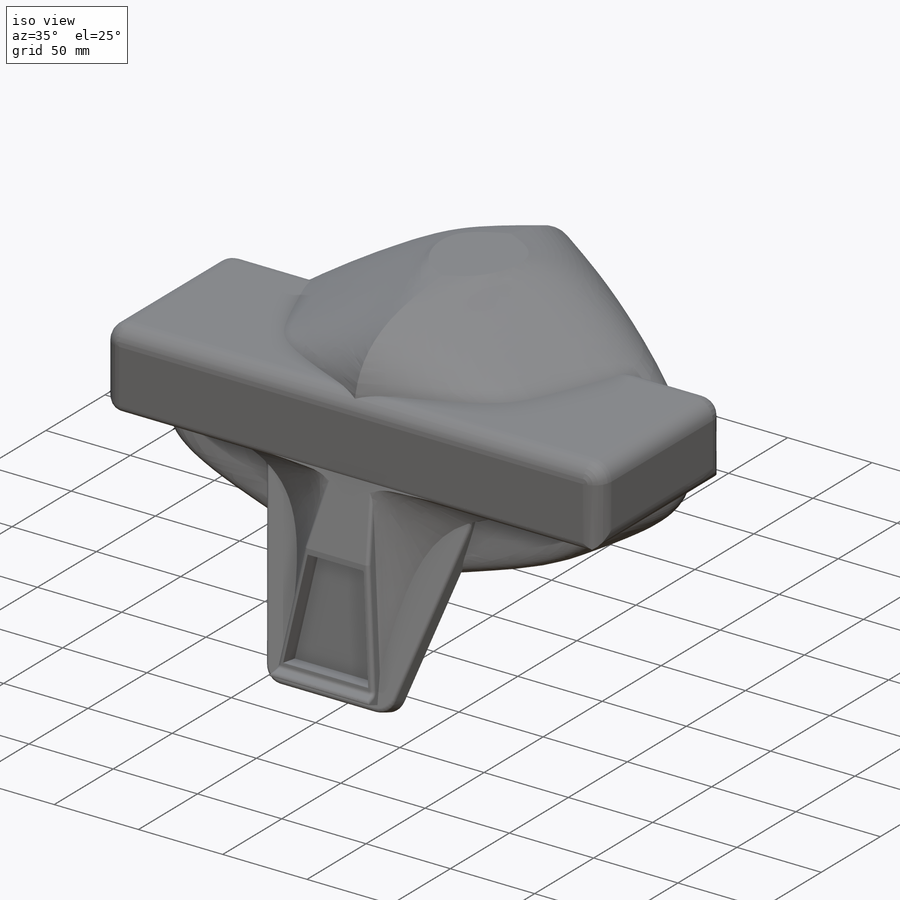
[diagram: iso view]
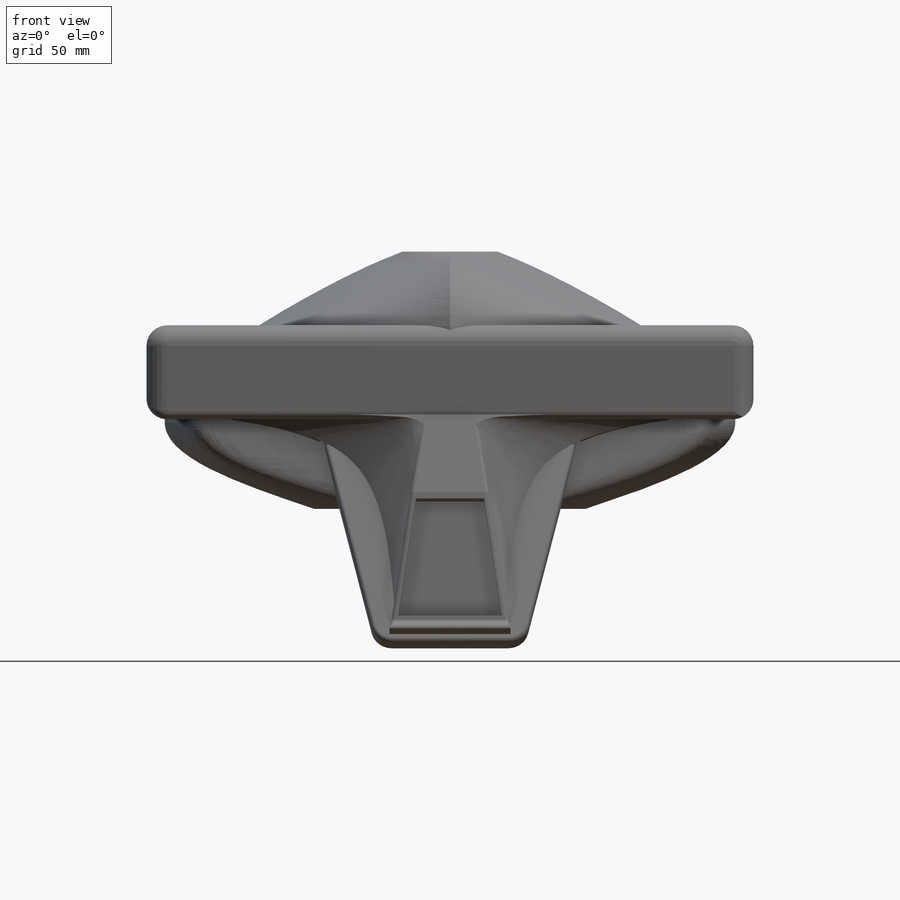
[diagram: front view]
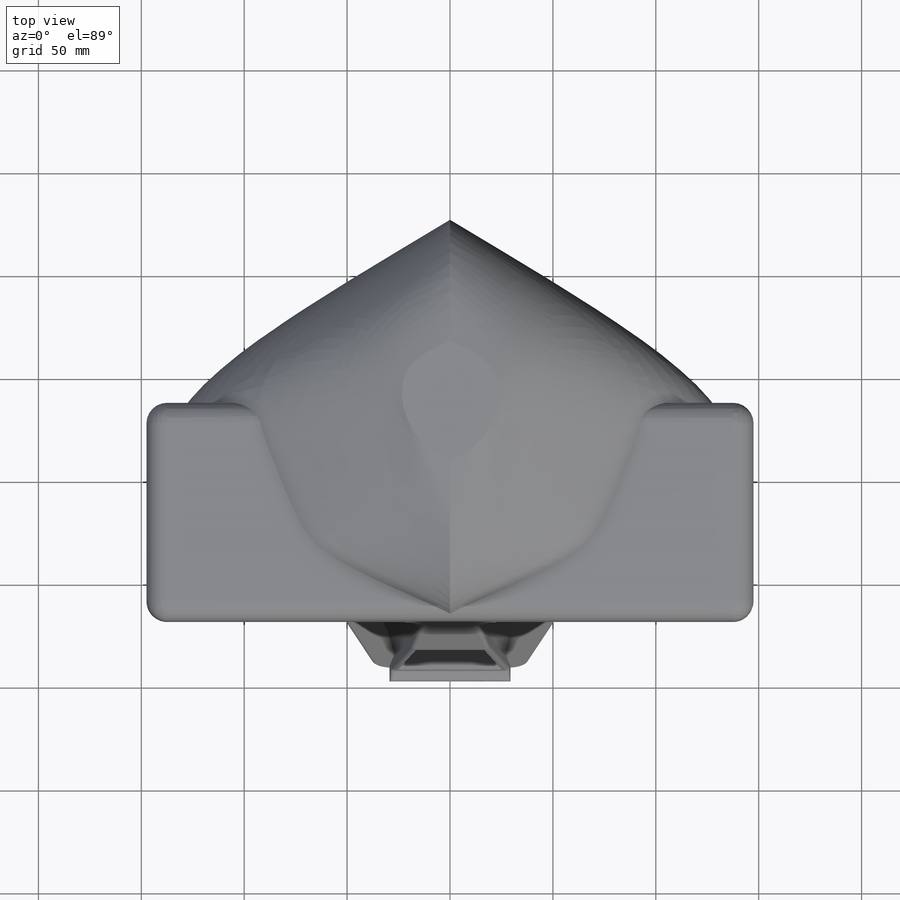
[diagram: top view]
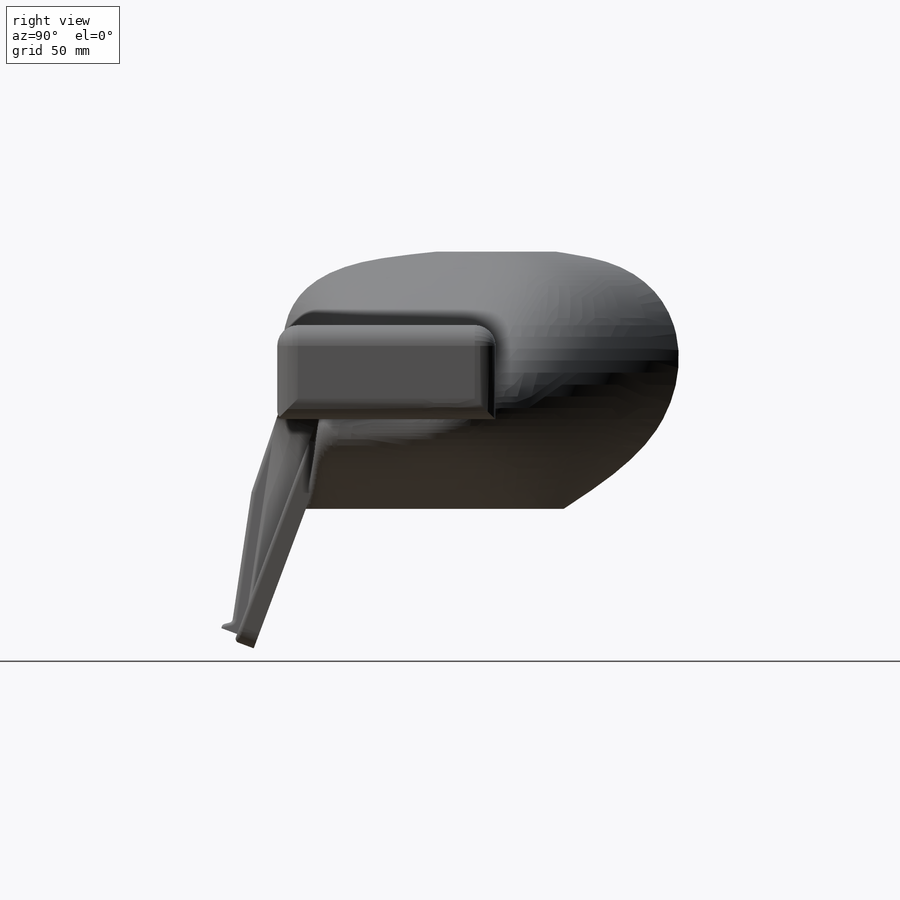
[diagram: right view]
SOLIDWORKS PART (.sldprt)
format: sldprt  version: not decoded by parser v0  size: 818,176 bytes
history: native  units: mm
features: sketch x17, plane x9, extrude x4, cut_extrude x4, fillet x4, mirror x2, material x1 (+14 scaffold rows collapsed)
feature tree (55):
  scaffold x14  (default folders/planes/origin — collapsed)
  material  "PVC Rigid"
  sketch  "Sketch1"  dims[D1=282.0mm D2=37.0mm]
  sketch  "Sketch2"  dims[D1=~176.500157mm]
  plane  "Plane1"  Offset=40mm
  plane  "Plane2"  Offset=80mm
  plane  "Plane3"  Offset=85mm
  plane  "Plane4"  Offset=40mm
  plane  "Plane7"  Offset=25mm
  sketch  "Sketch21"
  sketch  "Sketch4"
  sketch  "Sketch5"
  sketch  "Sketch6"
  sketch  "Sketch10"  dims[D1=295.0mm D2=~45.622821mm]
  extrude  "Extrude2"  Depth=70mm
  plane  "Plane5"
  sketch  "Sketch8"
  plane  "Plane6"
  sketch  "Sketch9"
  extrude  "Extrude1"  Depth=10mm
  sketch  "Sketch12"
  extrude  "Extrude3"  Depth=40mm
  sketch  "Sketch15"
  cut_extrude  "Extrude5"  Depth=40mm
  sketch  "Sketch16"
  sketch  "Sketch17"
  mirror  "Mirror1"
  sketch  "Sketch19"
  cut_extrude  "Extrude6"  Depth=40mm
  sketch  "Sketch20"  dims[D1=3.0mm]
  cut_extrude  "Extrude7"  Depth=10mm
  fillet  "Fillet1"  Radius=10mm
  fillet  "Fillet2"  Radius=10mm
  fillet  "Fillet3"  Radius=4mm
  fillet  "Fillet4"  Radius=2mm
  sketch  "Sketch22"  dims[D1=22.5mm]
  cut_extrude  "Extrude8"  Depth=2mm
  plane  "Plane8"
  plane  "Plane9"
  sketch  "Sketch25"  dims[D1=0.0mm]
  extrude  "Extrude15"  Depth=3mm
  mirror  "Mirror2"
decode coverage: 18 of 31 modeling features carry decoded parameters
note: ~ marks probable driven/reference dimensions
note: suppression state not decoded; provenance and decode notes live in map.json
